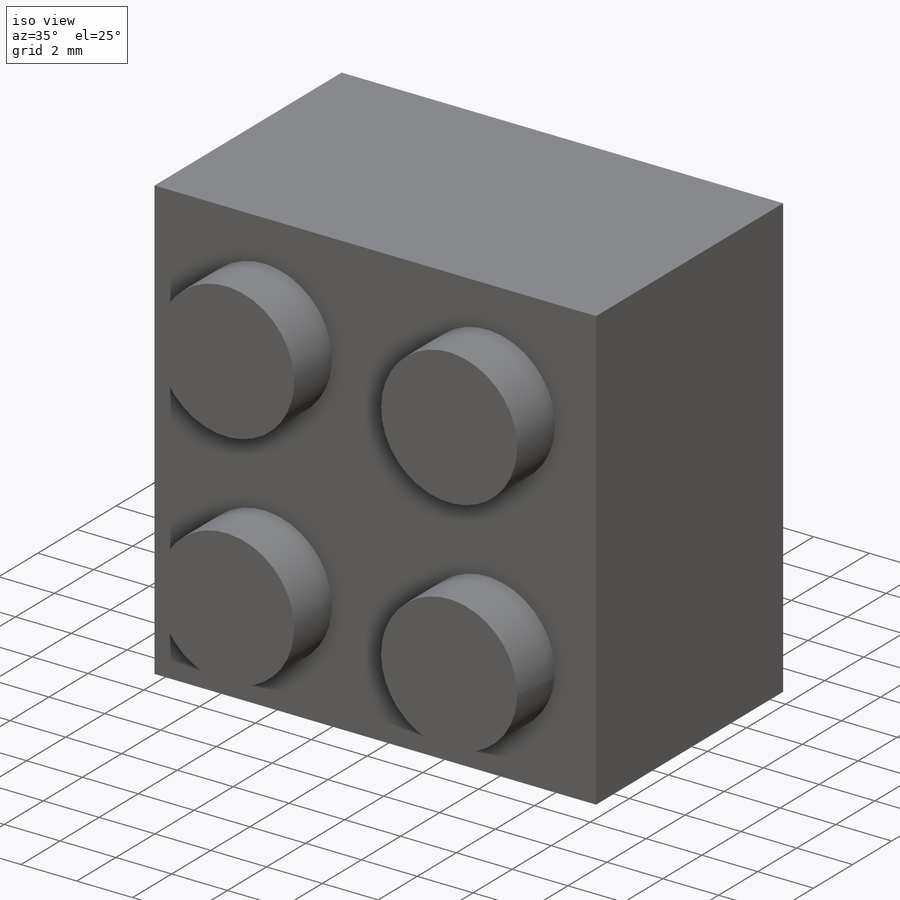
[diagram: iso view]
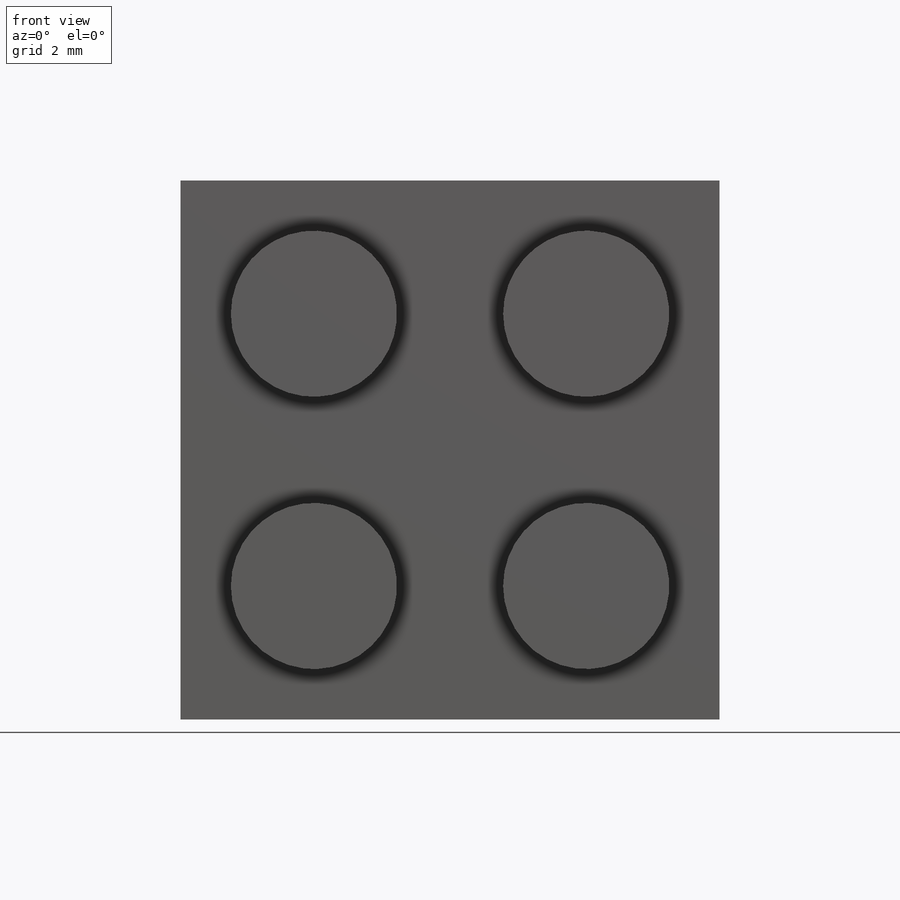
[diagram: front view]
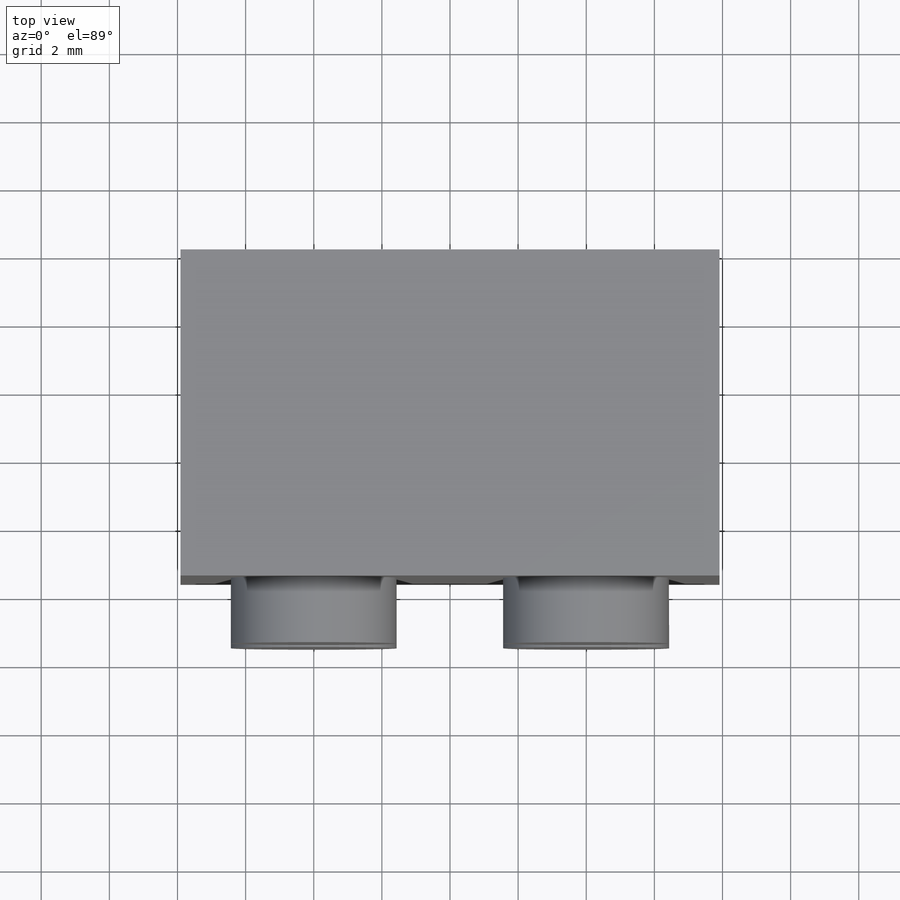
[diagram: top view]
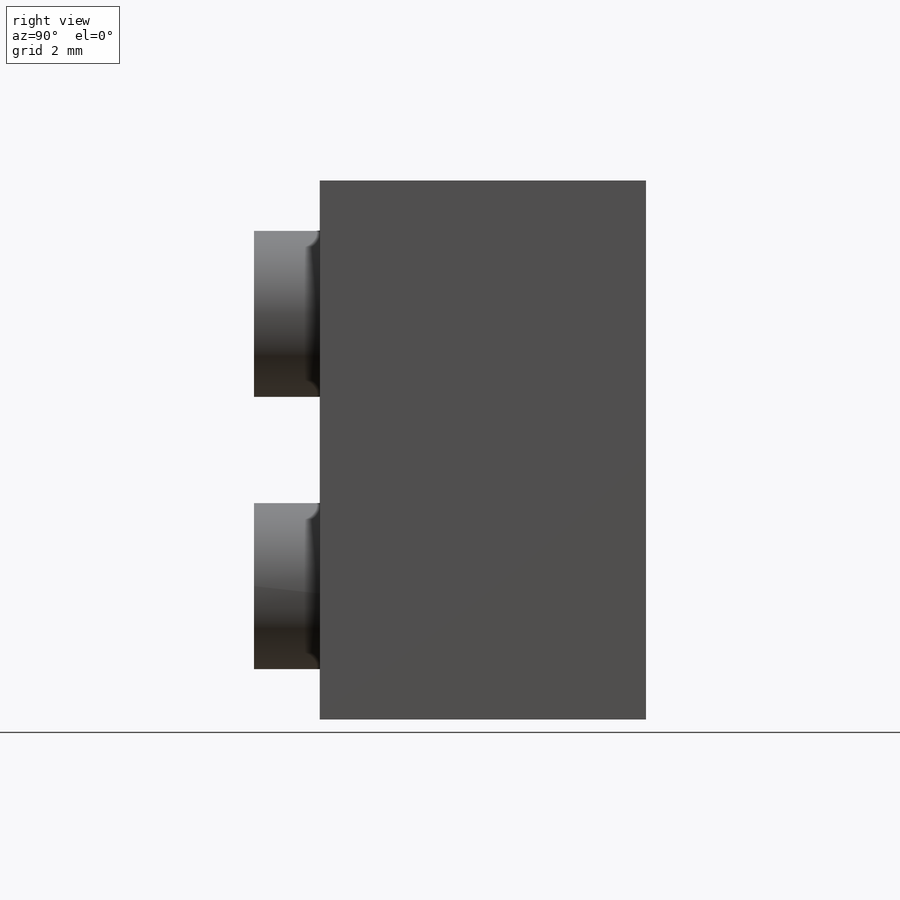
[diagram: right view]
SOLIDWORKS PART (.sldprt)
format: sldprt  version: not decoded by parser v0  size: 345,088 bytes
history: native  units: mm
features: sketch x4, extrude x2, cut_extrude x2, material x1, pattern_circular x1 (+11 scaffold rows collapsed)
feature tree (21):
  scaffold x11  (default folders/planes/origin — collapsed)
  material  "Material <not specified>"
  sketch  "Sketch1"  dims[D1=15.8242mm D2=~63.297652mm]
  extrude  "Boss-Extrude1"  Depth=9.5758mm
  sketch  "Sketch2"  dims[D2=6.4262mm D3=4.8768mm D1=1.1938mm]
  cut_extrude  "Cut-Extrude1"  Depth=8.4328mm
  sketch  "Sketch3"  dims[D1=4.8768mm]
  cut_extrude  "Cut-Extrude2"  [1 undecoded]
  sketch  "Sketch4"  dims[D1=4.8768mm D2=5.6515mm D3=~3.756788mm]
  extrude  "Boss-Extrude2"  Depth=1.9304mm
  pattern_circular  "CirPattern1"  Count=4 Angle=360deg
decode coverage: 8 of 9 modeling features carry decoded parameters
note: ~ marks probable driven/reference dimensions
note: 1 parameter value undecoded
note: suppression state not decoded; provenance and decode notes live in map.json
